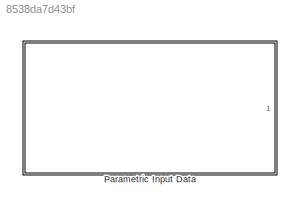
MODEL slx_8538da7d43bf
KIND library
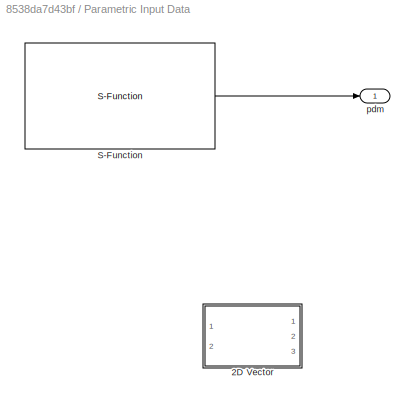
BLOCK [SubSystem] Parametric Input Data
  Ports = [0, 1]
  RequestExecContextInheritance = off
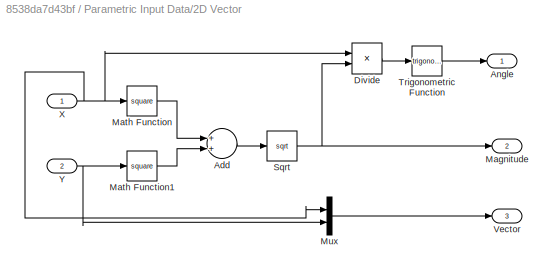
BLOCK [SubSystem] Parametric Input Data/2D Vector
  Ports = [2, 3]
  RequestExecContextInheritance = off
BLOCK [Sum] Parametric Input Data/2D Vector/Add
  InputSameDT = off
  OutDataTypeStr = Inherit: Inherit via internal rule
  Ports = [2, 1]
  SaturateOnIntegerOverflow = off
BLOCK [Outport] Parametric Input Data/2D Vector/Angle
  IconDisplay = Port number
BLOCK [Product] Parametric Input Data/2D Vector/Divide
  InputSameDT = off
  Inputs = */
  OutDataTypeStr = Inherit: Inherit via internal rule
  Ports = [2, 1]
  RndMeth = Floor
  SaturateOnIntegerOverflow = off
BLOCK [Outport] Parametric Input Data/2D Vector/Magnitude
  IconDisplay = Port number
  Port = 2
BLOCK [Math] Parametric Input Data/2D Vector/Math Function
  Operator = square
  Ports = [1, 1]
BLOCK [Math] Parametric Input Data/2D Vector/Math Function1
  Operator = square
  Ports = [1, 1]
BLOCK [Mux] Parametric Input Data/2D Vector/Mux
  DisplayOption = bar
  Inputs = 2
  Ports = [2, 1]
BLOCK [Sqrt] Parametric Input Data/2D Vector/Sqrt
BLOCK [Trigonometry] Parametric Input Data/2D Vector/Trigonometric Function
  Ports = [1, 1]
BLOCK [Outport] Parametric Input Data/2D Vector/Vector
  IconDisplay = Port number
  Port = 3
BLOCK [Inport] Parametric Input Data/2D Vector/X
  IconDisplay = Port number
BLOCK [Inport] Parametric Input Data/2D Vector/Y
  IconDisplay = Port number
  Port = 2
BLOCK [S-Function] Parametric Input Data/S-Function
  EnableBusSupport = off
  FunctionName = data_parametric_model
  Parameters = pdm
  Ports = [1, 1]
BLOCK [Outport] Parametric Input Data/pdm
  IconDisplay = Port number
LINE Parametric Input Data/2D Vector/Add:1 -> Parametric Input Data/2D Vector/Sqrt:1
LINE Parametric Input Data/2D Vector/Divide:1 -> Parametric Input Data/2D Vector/Trigonometric Function:1
LINE Parametric Input Data/2D Vector/Math Function1:1 -> Parametric Input Data/2D Vector/Add:2
LINE Parametric Input Data/2D Vector/Math Function:1 -> Parametric Input Data/2D Vector/Add:1
LINE Parametric Input Data/2D Vector/Mux:1 -> Parametric Input Data/2D Vector/Vector:1
NET Parametric Input Data/2D Vector/Sqrt:1 -> Parametric Input Data/2D Vector/Divide:2, Parametric Input Data/2D Vector/Magnitude:1
LINE Parametric Input Data/2D Vector/Trigonometric Function:1 -> Parametric Input Data/2D Vector/Angle:1
NET Parametric Input Data/2D Vector/X:1 -> Parametric Input Data/2D Vector/Divide:1, Parametric Input Data/2D Vector/Math Function:1, Parametric Input Data/2D Vector/Mux:1
NET Parametric Input Data/2D Vector/Y:1 -> Parametric Input Data/2D Vector/Math Function1:1, Parametric Input Data/2D Vector/Mux:2
LINE Parametric Input Data/S-Function:1 -> Parametric Input Data/pdm:1
note: NET lines group one-source signal fan-out (src -> all destinations, sorted); 1:1 wires keep LINE
